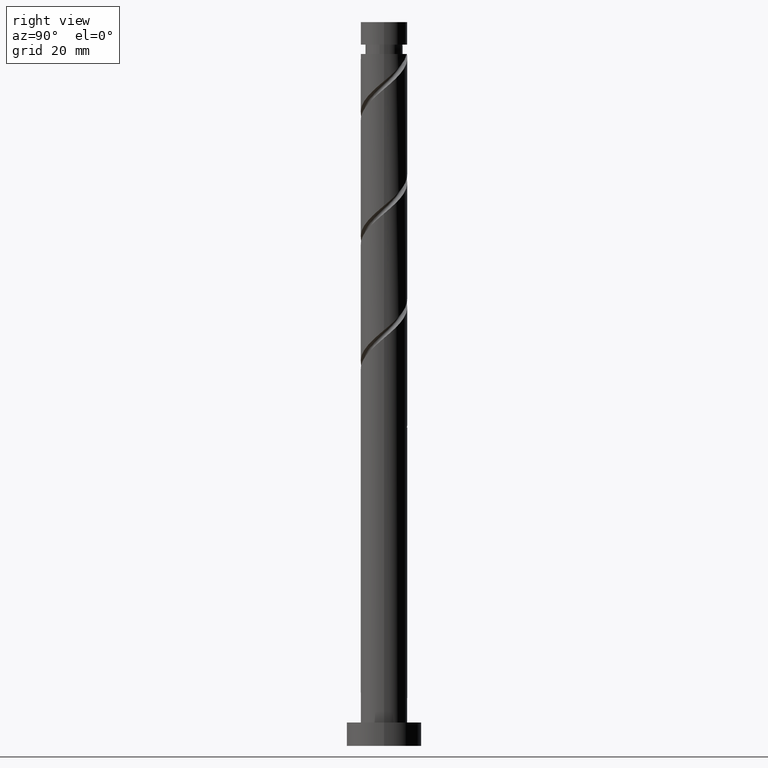
[diagram: clean part render]
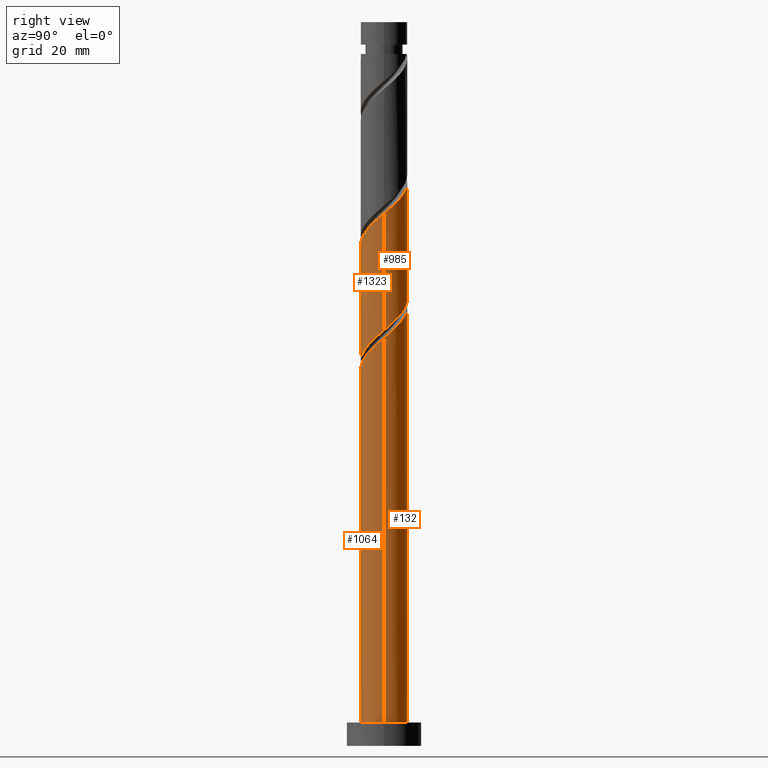
[diagram: same view with one multi-face feature highlighted, each face labeled with its STEP entity id]
A machine part, right view. The highlighted faces form ONE feature: a constant-radius fillet chain: 4 tangent blend faces with common blend radius 5 mm. The faces share edges in the B-rep.
Their STEP definitions:
[1] entity #1064 (Cylinder):
#19 = CARTESIAN_POINT ( 'NONE',  ( -4.708523589020798816, -1.682202607189388521, 75.45168989092317702 ) ) ;
#26 = CARTESIAN_POINT ( 'NONE',  ( 3.486176702121021709, -3.584211489517420635, 83.93653837577167565 ) ) ;
#62 = CARTESIAN_POINT ( 'NONE',  ( 1.699501077681991434, -4.756942403746386105, 82.11835655758986263 ) ) ;
#82 = DIRECTION ( 'NONE',  ( 0.000000000000000000, 0.000000000000000000, 1.000000000000000000 ) ) ;
#107 = EDGE_CURVE ( 'NONE', #681, #1356, #1646, .T. ) ;
#116 = CARTESIAN_POINT ( 'NONE',  ( -3.621068748224359091, -3.522025846900554313, 77.26987170910501845 ) ) ;
#124 = ORIENTED_EDGE ( 'NONE', *, *, #448, .T. ) ;
#160 = CARTESIAN_POINT ( 'NONE',  ( 4.707993719930686716, -1.830737577780037428, 85.75472019395347445 ) ) ;
#168 = EDGE_LOOP ( 'NONE', ( #302, #615, #124, #1107 ) ) ;
#237 = DIRECTION ( 'NONE',  ( -0.000000000000000000, -0.000000000000000000, -1.000000000000000000 ) ) ;
#253 = CARTESIAN_POINT ( 'NONE',  ( 0.2904737965312516601, -5.043057596253627040, 80.90623534546861606 ) ) ;
#263 = CARTESIAN_POINT ( 'NONE',  ( -2.482120673787422405, -4.399532009925576581, 78.48199292122622239 ) ) ;
#299 = DIRECTION ( 'NONE',  ( -0.000000000000000000, -0.000000000000000000, -1.000000000000000000 ) ) ;
#302 = ORIENTED_EDGE ( 'NONE', *, *, #1489, .F. ) ;
#317 = CARTESIAN_POINT ( 'NONE',  ( 5.000000000000007994, 3.903730203612562477E-15, 87.32950813889500807 ) ) ;
#329 = DIRECTION ( 'NONE',  ( -0.000000000000000000, -0.000000000000000000, -1.000000000000000000 ) ) ;
#371 = CARTESIAN_POINT ( 'NONE',  ( -4.466659368005212016, -2.359186096053888626, 76.05775049698378609 ) ) ;
#426 = CARTESIAN_POINT ( 'NONE',  ( 2.970844888841024378, -4.085448028313401814, 83.33047776971103815 ) ) ;
#445 = CARTESIAN_POINT ( 'NONE',  ( 5.000000000000007105, -0.5726446369256198432, 86.84354818592370862 ) ) ;
#448 = EDGE_CURVE ( 'NONE', #681, #1405, #596, .T. ) ;
#511 = AXIS2_PLACEMENT_3D ( 'NONE', #1592, #82, #719 ) ;
#558 = VERTEX_POINT ( 'NONE', #832 ) ;
#595 = AXIS2_PLACEMENT_3D ( 'NONE', #1397, #237, #885 ) ;
#596 = LINE ( 'NONE', #1225, #1450 ) ;
#615 = ORIENTED_EDGE ( 'NONE', *, *, #107, .F. ) ;
#636 = CARTESIAN_POINT ( 'NONE',  ( -3.051594711005890748, -3.960778928413065003, 77.87593231516561332 ) ) ;
#681 = VERTEX_POINT ( 'NONE', #974 ) ;
#686 = CARTESIAN_POINT ( 'NONE',  ( 4.354751117665853322, -2.456856264250739219, 85.14865958789290801 ) ) ;
#700 = CARTESIAN_POINT ( 'NONE',  ( -5.000000000000000000, 0.000000000000000000, 5.000000000000000000 ) ) ;
#705 = CARTESIAN_POINT ( 'NONE',  ( 0.9949874371066216305, -4.900000000000007461, 81.51229595152926777 ) ) ;
#719 = DIRECTION ( 'NONE',  ( 1.000000000000000000, 0.000000000000000000, 0.000000000000000000 ) ) ;
#784 = CARTESIAN_POINT ( 'NONE',  ( -4.950387810036383840, -1.005219118324889527, 74.84562928486258215 ) ) ;
#806 = CARTESIAN_POINT ( 'NONE',  ( 4.870529496359508492, -1.130461155941271389, 86.36078080001406931 ) ) ;
#827 = CIRCLE ( 'NONE', #511, 5.000000000000000000 ) ;
#832 = CARTESIAN_POINT ( 'NONE',  ( 5.000000000000000000, 6.123233995736766282E-16, 5.000000000000000000 ) ) ;
#877 = FACE_OUTER_BOUND ( 'NONE', #168, .T. ) ;
#885 = DIRECTION ( 'NONE',  ( -1.000000000000000000, 0.000000000000000000, 0.000000000000000000 ) ) ;
#943 = CARTESIAN_POINT ( 'NONE',  ( 2.335172983261507795, -4.421195216029893515, 82.72441716365044329 ) ) ;
#964 = VECTOR ( 'NONE', #329, 1000.000000000000000 ) ;
#974 = CARTESIAN_POINT ( 'NONE',  ( -5.000000000000007994, -4.098168872758016579E-15, 73.99617480556170790 ) ) ;
#1008 = CARTESIAN_POINT ( 'NONE',  ( -4.991726541412356610, -0.2875171921111925877, 74.23956867880197308 ) ) ;
#1019 = CARTESIAN_POINT ( 'NONE',  ( -1.142085944100265760, -4.920614254530760512, 79.69411413334742633 ) ) ;
#1064 = ADVANCED_FACE ( 'NONE', ( #877 ), #1108, .T. ) ;
#1101 = LINE ( 'NONE', #1473, #964 ) ;
#1107 = ORIENTED_EDGE ( 'NONE', *, *, #1410, .T. ) ;
#1108 = CYLINDRICAL_SURFACE ( 'NONE', #595, 5.000000000000000000 ) ;
#1154 = CARTESIAN_POINT ( 'NONE',  ( -1.812103308943844748, -4.660073132228168546, 79.08805352728680305 ) ) ;
#1225 = CARTESIAN_POINT ( 'NONE',  ( -5.000000000000000000, 0.000000000000000000, 155.0000000000000000 ) ) ;
#1284 = CARTESIAN_POINT ( 'NONE',  ( -4.043864058114787774, -2.940605971477222358, 76.66381110304439517 ) ) ;
#1356 = VERTEX_POINT ( 'NONE', #1558 ) ;
#1397 = CARTESIAN_POINT ( 'NONE',  ( 0.000000000000000000, 0.000000000000000000, 155.0000000000000000 ) ) ;
#1405 = VERTEX_POINT ( 'NONE', #700 ) ;
#1410 = EDGE_CURVE ( 'NONE', #1405, #558, #827, .T. ) ;
#1412 = CARTESIAN_POINT ( 'NONE',  ( -0.4258060737845069110, -4.981835925392195108, 80.30017473940806383 ) ) ;
#1423 = CARTESIAN_POINT ( 'NONE',  ( -5.000000000000006217, -0.1438776326191163468, 74.11827281027991887 ) ) ;
#1450 = VECTOR ( 'NONE', #299, 1000.000000000000000 ) ;
#1467 = CARTESIAN_POINT ( 'NONE',  ( 4.001508515401017263, -3.082974950721437679, 84.54259898183227051 ) ) ;
#1473 = CARTESIAN_POINT ( 'NONE',  ( 5.000000000000000000, 6.123233995736766282E-16, 155.0000000000000000 ) ) ;
#1489 = EDGE_CURVE ( 'NONE', #1356, #558, #1101, .T. ) ;
#1546 = CARTESIAN_POINT ( 'NONE',  ( -5.000000000000007994, -4.098168872758015790E-15, 73.99617480556170790 ) ) ;
#1558 = CARTESIAN_POINT ( 'NONE',  ( 5.000000000000007994, 3.903730203612562477E-15, 87.32950813889500807 ) ) ;
#1592 = CARTESIAN_POINT ( 'NONE',  ( 0.000000000000000000, 0.000000000000000000, 5.000000000000000000 ) ) ;
#1646 =( BOUNDED_CURVE ( )  B_SPLINE_CURVE ( 2, ( #1546, #1423, #1008, #784, #19, #371, #1284, #116, #636, #263, #1154, #1019, #1412, #253, #705, #62, #943, #426, #26, #1467, #686, #160, #806, #445, #317 ),
 .UNSPECIFIED., .F., .T. ) 
 B_SPLINE_CURVE_WITH_KNOTS ( ( 3, 2, 2, 2, 2, 2, 2, 2, 2, 2, 2, 2, 3 ),
 ( 0.05452521624175135639, 0.05681818181818176772, 0.06818181818181823228, 0.07954545454545458583, 0.09090909090909093937, 0.1022727272727272929, 0.1136363636363636465, 0.1250000000000000000, 0.1363636363636363535, 0.1477272727272727071, 0.1590909090909090606, 0.1704545454545454142, 0.1795252162417512176 ),
 .UNSPECIFIED. ) 
 CURVE ( )  GEOMETRIC_REPRESENTATION_ITEM ( )  RATIONAL_B_SPLINE_CURVE ( ( 0.9061101570135607908, 0.9072237824201428991, 0.9090909090909202739, 0.8998376744372226232, 0.9090909090909202739, 0.8998376744372226232, 0.9090909090909202739, 0.8998376744372226232, 0.9090909090909202739, 0.8998376744372226232, 0.9090909090909202739, 0.8998376744372226232, 0.9090909090909202739, 0.8998376744372226232, 0.9090909090909202739, 0.8998376744372226232, 0.9090909090909202739, 0.8998376744372226232, 0.9090909090909202739, 0.8998376744372226232, 0.9090909090909202739, 0.8998376744372226232, 0.9090909090909202739, 0.9017048011080001091, 0.9061101570135605687 ) ) 
 REPRESENTATION_ITEM ( '' )  );
[2] entity #132 (Cylinder):
#13 = CARTESIAN_POINT ( 'NONE',  ( -0.9949874371066206313, 4.900000000000006573, 68.17896261819591075 ) ) ;
#29 = CARTESIAN_POINT ( 'NONE',  ( -3.486176702121021709, 3.584211489517420635, 97.26987170910501845 ) ) ;
#31 = CARTESIAN_POINT ( 'NONE',  ( -5.000000000000000000, 0.1438776326191157084, 75.57298575944523122 ) ) ;
#100 = ORIENTED_EDGE ( 'NONE', *, *, #1489, .T. ) ;
#130 = CARTESIAN_POINT ( 'NONE',  ( -4.001508515401018151, 3.082974950721436791, 71.20926564849892770 ) ) ;
#132 = ADVANCED_FACE ( 'NONE', ( #1331 ), #936, .T. ) ;
#133 = CARTESIAN_POINT ( 'NONE',  ( 0.9949874371066227408, 4.900000000000000355, 68.17896261819591075 ) ) ;
#145 = AXIS2_PLACEMENT_3D ( 'NONE', #822, #702, #1215 ) ;
#147 = CARTESIAN_POINT ( 'NONE',  ( -4.001508515401018151, 3.082974950721436791, 97.87593231516561332 ) ) ;
#156 = CARTESIAN_POINT ( 'NONE',  ( -4.707993719930686716, 1.830737577780038539, 99.08805352728680305 ) ) ;
#198 = VERTEX_POINT ( 'NONE', #816 ) ;
#242 = CARTESIAN_POINT ( 'NONE',  ( -1.812103308943839419, 4.660073132228159665, 70.60320504243833284 ) ) ;
#248 = AXIS2_PLACEMENT_3D ( 'NONE', #582, #301, #924 ) ;
#268 = CARTESIAN_POINT ( 'NONE',  ( -5.000000000000008882, 0.5726446369256115165, 73.51021485259039423 ) ) ;
#275 = CARTESIAN_POINT ( 'NONE',  ( -2.970844888841024378, 4.085448028313403590, 96.66381110304440938 ) ) ;
#291 = CARTESIAN_POINT ( 'NONE',  ( -2.335172983261508683, 4.421195216029893515, 96.05775049698381451 ) ) ;
#299 = DIRECTION ( 'NONE',  ( -0.000000000000000000, -0.000000000000000000, -1.000000000000000000 ) ) ;
#301 = DIRECTION ( 'NONE',  ( -0.000000000000000000, -0.000000000000000000, -1.000000000000000000 ) ) ;
#307 = VERTEX_POINT ( 'NONE', #853 ) ;
#329 = DIRECTION ( 'NONE',  ( -0.000000000000000000, -0.000000000000000000, -1.000000000000000000 ) ) ;
#336 = AXIS2_PLACEMENT_3D ( 'NONE', #379, #386, #769 ) ;
#356 =( BOUNDED_CURVE ( )  B_SPLINE_CURVE ( 2, ( #13, #893, #1033, #523, #1417, #130, #1025, #899, #801, #268, #927 ),
 .UNSPECIFIED., .F., .T. ) 
 B_SPLINE_CURVE_WITH_KNOTS ( ( 3, 2, 2, 2, 2, 3 ),
 ( 0.000000000000000000, 0.01136363636363635354, 0.02272727272727270709, 0.03409090909090906063, 0.04545454545454541417, 0.05452521624175135639 ),
 .UNSPECIFIED. ) 
 CURVE ( )  GEOMETRIC_REPRESENTATION_ITEM ( )  RATIONAL_B_SPLINE_CURVE ( ( 0.9090909090909202739, 0.8998376744372226232, 0.9090909090909202739, 0.8998376744372226232, 0.9090909090909202739, 0.8998376744372226232, 0.9090909090909202739, 0.8998376744372226232, 0.9090909090909202739, 0.9017048011079999981, 0.9061101570135607908 ) ) 
 REPRESENTATION_ITEM ( '' )  );
#367 = CARTESIAN_POINT ( 'NONE',  ( -3.051594711005884086, 3.960778928413059674, 71.81532625455953678 ) ) ;
#378 = EDGE_CURVE ( 'NONE', #198, #1062, #1070, .T. ) ;
#379 = CARTESIAN_POINT ( 'NONE',  ( 0.000000000000000000, 0.000000000000000000, 68.17896261819592496 ) ) ;
#386 = DIRECTION ( 'NONE',  ( 0.000000000000000000, -0.000000000000000000, -1.000000000000000000 ) ) ;
#392 = CARTESIAN_POINT ( 'NONE',  ( 4.043864058114788662, 2.940605971477221026, 89.99714443637770955 ) ) ;
#399 = CARTESIAN_POINT ( 'NONE',  ( 4.708523589020798816, 1.682202607189387411, 88.78502322425654825 ) ) ;
#411 = CARTESIAN_POINT ( 'NONE',  ( -3.621068748224353318, 3.522025846900549428, 72.42138686062016006 ) ) ;
#448 = EDGE_CURVE ( 'NONE', #681, #1405, #596, .T. ) ;
#453 = CARTESIAN_POINT ( 'NONE',  ( -5.000000000000000000, 0.000000000000000000, 155.0000000000000000 ) ) ;
#488 = ORIENTED_EDGE ( 'NONE', *, *, #517, .F. ) ;
#517 = EDGE_CURVE ( 'NONE', #528, #198, #843, .T. ) ;
#523 = CARTESIAN_POINT ( 'NONE',  ( -2.970844888841024378, 4.085448028313403590, 69.99714443637770955 ) ) ;
#528 = VERTEX_POINT ( 'NONE', #1480 ) ;
#534 = CIRCLE ( 'NONE', #145, 5.000000000000000000 ) ;
#539 = CARTESIAN_POINT ( 'NONE',  ( 4.950387810036383840, 1.005219118324888861, 88.17896261819593917 ) ) ;
#549 = CARTESIAN_POINT ( 'NONE',  ( -4.354751117665853322, 2.456856264250738331, 98.48199292122619397 ) ) ;
#551 = CARTESIAN_POINT ( 'NONE',  ( -4.708523589020789935, 1.682202607189386523, 74.23956867880198729 ) ) ;
#558 = VERTEX_POINT ( 'NONE', #832 ) ;
#582 = CARTESIAN_POINT ( 'NONE',  ( 0.000000000000000000, 0.000000000000000000, 155.0000000000000000 ) ) ;
#593 = CARTESIAN_POINT ( 'NONE',  ( -5.000000000000007994, -4.098168872758016579E-15, 100.6628414722283509 ) ) ;
#596 = LINE ( 'NONE', #1225, #1450 ) ;
#638 = EDGE_CURVE ( 'NONE', #558, #1405, #534, .T. ) ;
#640 = VECTOR ( 'NONE', #958, 1000.000000000000000 ) ;
#654 = CARTESIAN_POINT ( 'NONE',  ( 5.000000000000007994, 3.903730203612562477E-15, 87.32950813889500807 ) ) ;
#672 = CARTESIAN_POINT ( 'NONE',  ( 0.4258060737845075217, 4.981835925392195996, 93.63350807274137821 ) ) ;
#681 = VERTEX_POINT ( 'NONE', #974 ) ;
#700 = CARTESIAN_POINT ( 'NONE',  ( -5.000000000000000000, 0.000000000000000000, 5.000000000000000000 ) ) ;
#702 = DIRECTION ( 'NONE',  ( 0.000000000000000000, 0.000000000000000000, 1.000000000000000000 ) ) ;
#760 = CARTESIAN_POINT ( 'NONE',  ( -0.4258060737845053567, 4.981835925392186226, 69.39108383031712890 ) ) ;
#761 = EDGE_CURVE ( 'NONE', #307, #681, #356, .T. ) ;
#769 = DIRECTION ( 'NONE',  ( -1.000000000000000000, 0.000000000000000000, 0.000000000000000000 ) ) ;
#770 = EDGE_CURVE ( 'NONE', #1356, #528, #1421, .T. ) ;
#771 = ORIENTED_EDGE ( 'NONE', *, *, #770, .F. ) ;
#793 = CARTESIAN_POINT ( 'NONE',  ( 1.812103308943843416, 4.660073132228168546, 92.42138686062016006 ) ) ;
#800 = ORIENTED_EDGE ( 'NONE', *, *, #638, .T. ) ;
#801 = CARTESIAN_POINT ( 'NONE',  ( -4.870529496359508492, 1.130461155941271612, 73.02744746668075493 ) ) ;
#816 = CARTESIAN_POINT ( 'NONE',  ( -5.000000000000000000, 5.444282736072736138E-15, 75.69508376416347062 ) ) ;
#822 = CARTESIAN_POINT ( 'NONE',  ( 0.000000000000000000, 0.000000000000000000, 5.000000000000000000 ) ) ;
#832 = CARTESIAN_POINT ( 'NONE',  ( 5.000000000000000000, 6.123233995736766282E-16, 5.000000000000000000 ) ) ;
#843 = LINE ( 'NONE', #453, #640 ) ;
#853 = CARTESIAN_POINT ( 'NONE',  ( -0.9949874371066207424, 4.900000000000006573, 68.17896261819591075 ) ) ;
#893 = CARTESIAN_POINT ( 'NONE',  ( -1.699501077681992545, 4.756942403746386105, 68.78502322425651982 ) ) ;
#899 = CARTESIAN_POINT ( 'NONE',  ( -4.707993719930686716, 1.830737577780038539, 72.42138686062013164 ) ) ;
#916 = CARTESIAN_POINT ( 'NONE',  ( 4.466659368005212905, 2.359186096053887294, 89.39108383031712890 ) ) ;
#924 = DIRECTION ( 'NONE',  ( -1.000000000000000000, 0.000000000000000000, 0.000000000000000000 ) ) ;
#927 = CARTESIAN_POINT ( 'NONE',  ( -5.000000000000007994, -4.098168872758015790E-15, 73.99617480556170790 ) ) ;
#936 = CYLINDRICAL_SURFACE ( 'NONE', #248, 5.000000000000000000 ) ;
#958 = DIRECTION ( 'NONE',  ( -0.000000000000000000, -0.000000000000000000, -1.000000000000000000 ) ) ;
#964 = VECTOR ( 'NONE', #329, 1000.000000000000000 ) ;
#974 = CARTESIAN_POINT ( 'NONE',  ( -5.000000000000007994, -4.098168872758016579E-15, 73.99617480556170790 ) ) ;
#1006 = CARTESIAN_POINT ( 'NONE',  ( -4.991726541412347729, 0.2875171921111933648, 75.45168989092319123 ) ) ;
#1021 = CARTESIAN_POINT ( 'NONE',  ( -4.870529496359508492, 1.130461155941271612, 99.69411413334744054 ) ) ;
#1025 = CARTESIAN_POINT ( 'NONE',  ( -4.354751117665853322, 2.456856264250738331, 71.81532625455953678 ) ) ;
#1033 = CARTESIAN_POINT ( 'NONE',  ( -2.335172983261508683, 4.421195216029893515, 69.39108383031712890 ) ) ;
#1055 = CARTESIAN_POINT ( 'NONE',  ( 2.482120673787420628, 4.399532009925577469, 91.81532625455955099 ) ) ;
#1058 = CARTESIAN_POINT ( 'NONE',  ( -4.466659368005205799, 2.359186096053885517, 73.63350807274136400 ) ) ;
#1062 = VERTEX_POINT ( 'NONE', #1507 ) ;
#1066 = CIRCLE ( 'NONE', #336, 5.000000000000000000 ) ;
#1070 =( BOUNDED_CURVE ( )  B_SPLINE_CURVE ( 2, ( #1188, #31, #1006, #1524, #551, #1058, #1576, #411, #367, #1403, #242, #1455, #760, #1303, #133 ),
 .UNSPECIFIED., .F., .T. ) 
 B_SPLINE_CURVE_WITH_KNOTS ( ( 3, 2, 2, 2, 2, 2, 2, 3 ),
 ( 0.9295252162417513286, 0.9318181818181817677, 0.9431818181818182323, 0.9545454545454545858, 0.9659090909090909394, 0.9772727272727272929, 0.9886363636363636465, 1.000000000000000000 ),
 .UNSPECIFIED. ) 
 CURVE ( )  GEOMETRIC_REPRESENTATION_ITEM ( )  RATIONAL_B_SPLINE_CURVE ( ( 0.9061101570135534633, 0.9072237824201356826, 0.9090909090909131685, 0.8998376744372155178, 0.9090909090909131685, 0.8998376744372155178, 0.9090909090909131685, 0.8998376744372155178, 0.9090909090909131685, 0.8998376744372155178, 0.9090909090909131685, 0.8998376744372155178, 0.9090909090909131685, 0.8998376744372155178, 0.9090909090909131685 ) ) 
 REPRESENTATION_ITEM ( '' )  );
#1101 = LINE ( 'NONE', #1473, #964 ) ;
#1186 = CARTESIAN_POINT ( 'NONE',  ( -1.699501077681992545, 4.756942403746386105, 95.45168989092316281 ) ) ;
#1188 = CARTESIAN_POINT ( 'NONE',  ( -5.000000000000000000, 5.444282736072736138E-15, 75.69508376416347062 ) ) ;
#1195 = CARTESIAN_POINT ( 'NONE',  ( -0.9949874371066209644, 4.900000000000007461, 94.84562928486256794 ) ) ;
#1215 = DIRECTION ( 'NONE',  ( 1.000000000000000000, 0.000000000000000000, 0.000000000000000000 ) ) ;
#1225 = CARTESIAN_POINT ( 'NONE',  ( -5.000000000000000000, 0.000000000000000000, 155.0000000000000000 ) ) ;
#1303 = CARTESIAN_POINT ( 'NONE',  ( 0.2904737965312522707, 5.043057596253619046, 68.78502322425654825 ) ) ;
#1305 = ORIENTED_EDGE ( 'NONE', *, *, #1636, .T. ) ;
#1309 = CARTESIAN_POINT ( 'NONE',  ( 4.991726541412356610, 0.2875171921111920881, 87.57290201213528746 ) ) ;
#1328 = CARTESIAN_POINT ( 'NONE',  ( 5.000000000000006217, 0.1438776326191072708, 87.45160614361320484 ) ) ;
#1331 = FACE_OUTER_BOUND ( 'NONE', #1643, .T. ) ;
#1334 = ORIENTED_EDGE ( 'NONE', *, *, #448, .F. ) ;
#1351 = ORIENTED_EDGE ( 'NONE', *, *, #378, .F. ) ;
#1356 = VERTEX_POINT ( 'NONE', #1558 ) ;
#1403 = CARTESIAN_POINT ( 'NONE',  ( -2.482120673787417964, 4.399532009925572140, 71.20926564849895612 ) ) ;
#1405 = VERTEX_POINT ( 'NONE', #700 ) ;
#1417 = CARTESIAN_POINT ( 'NONE',  ( -3.486176702121021709, 3.584211489517420635, 70.60320504243834705 ) ) ;
#1421 =( BOUNDED_CURVE ( )  B_SPLINE_CURVE ( 2, ( #654, #1328, #1309, #539, #399, #916, #392, #1444, #1557, #1055, #793, #1433, #672, #1452, #1195, #1186, #291, #275, #29, #147, #549, #156, #1021, #1542, #593 ),
 .UNSPECIFIED., .F., .T. ) 
 B_SPLINE_CURVE_WITH_KNOTS ( ( 3, 2, 2, 2, 2, 2, 2, 2, 2, 2, 2, 2, 3 ),
 ( 0.1795252162417512176, 0.1818181818181817677, 0.1931818181818182323, 0.2045454545454545858, 0.2159090909090909394, 0.2272727272727272929, 0.2386363636363636465, 0.2500000000000000000, 0.2613636363636363535, 0.2727272727272727071, 0.2840909090909090606, 0.2954545454545454142, 0.3045252162417513286 ),
 .UNSPECIFIED. ) 
 CURVE ( )  GEOMETRIC_REPRESENTATION_ITEM ( )  RATIONAL_B_SPLINE_CURVE ( ( 0.9061101570135605687, 0.9072237824201427880, 0.9090909090909202739, 0.8998376744372226232, 0.9090909090909202739, 0.8998376744372226232, 0.9090909090909202739, 0.8998376744372226232, 0.9090909090909202739, 0.8998376744372226232, 0.9090909090909202739, 0.8998376744372226232, 0.9090909090909202739, 0.8998376744372226232, 0.9090909090909202739, 0.8998376744372226232, 0.9090909090909202739, 0.8998376744372226232, 0.9090909090909202739, 0.8998376744372226232, 0.9090909090909202739, 0.8998376744372226232, 0.9090909090909202739, 0.9017048011080001091, 0.9061101570135606798 ) ) 
 REPRESENTATION_ITEM ( '' )  );
#1433 = CARTESIAN_POINT ( 'NONE',  ( 1.142085944100266204, 4.920614254530760512, 93.02744746668076914 ) ) ;
#1444 = CARTESIAN_POINT ( 'NONE',  ( 3.621068748224361311, 3.522025846900553869, 90.60320504243831863 ) ) ;
#1450 = VECTOR ( 'NONE', #299, 1000.000000000000000 ) ;
#1452 = CARTESIAN_POINT ( 'NONE',  ( -0.2904737965312511050, 5.043057596253627928, 94.23956867880195887 ) ) ;
#1455 = CARTESIAN_POINT ( 'NONE',  ( -1.142085944100262873, 4.920614254530754295, 69.99714443637775219 ) ) ;
#1473 = CARTESIAN_POINT ( 'NONE',  ( 5.000000000000000000, 6.123233995736766282E-16, 155.0000000000000000 ) ) ;
#1480 = CARTESIAN_POINT ( 'NONE',  ( -5.000000000000007994, -4.098168872758016579E-15, 100.6628414722283509 ) ) ;
#1489 = EDGE_CURVE ( 'NONE', #1356, #558, #1101, .T. ) ;
#1507 = CARTESIAN_POINT ( 'NONE',  ( 0.9949874371066227408, 4.900000000000000355, 68.17896261819591075 ) ) ;
#1524 = CARTESIAN_POINT ( 'NONE',  ( -4.950387810036377623, 1.005219118324889305, 74.84562928486258215 ) ) ;
#1542 = CARTESIAN_POINT ( 'NONE',  ( -5.000000000000007994, 0.5726446369256132929, 100.1768815192570514 ) ) ;
#1557 = CARTESIAN_POINT ( 'NONE',  ( 3.051594711005889859, 3.960778928413066780, 91.20926564849892770 ) ) ;
#1558 = CARTESIAN_POINT ( 'NONE',  ( 5.000000000000007994, 3.903730203612562477E-15, 87.32950813889500807 ) ) ;
#1576 = CARTESIAN_POINT ( 'NONE',  ( -4.043864058114778004, 2.940605971477216585, 73.02744746668076914 ) ) ;
#1631 = ORIENTED_EDGE ( 'NONE', *, *, #761, .F. ) ;
#1636 = EDGE_CURVE ( 'NONE', #307, #1062, #1066, .T. ) ;
#1643 = EDGE_LOOP ( 'NONE', ( #771, #100, #800, #1334, #1631, #1305, #1351, #488 ) ) ;
[3] entity #1323 (Cylinder):
#33 = CARTESIAN_POINT ( 'NONE',  ( 0.4258060737845039134, -4.981835925392186226, 82.72441716365044329 ) ) ;
#88 = CARTESIAN_POINT ( 'NONE',  ( -1.142085944100265760, -4.920614254530760512, 106.3607808000140977 ) ) ;
#112 = CARTESIAN_POINT ( 'NONE',  ( -4.043864058114787774, -2.940605971477222358, 103.3304777697110950 ) ) ;
#139 = CARTESIAN_POINT ( 'NONE',  ( 0.2904737965312516601, -5.043057596253627040, 107.5729020121353159 ) ) ;
#154 = CARTESIAN_POINT ( 'NONE',  ( 5.000000000000000000, 7.343798965416794784E-15, 89.02841709749681343 ) ) ;
#157 = CARTESIAN_POINT ( 'NONE',  ( 0.000000000000000000, 0.000000000000000000, 155.0000000000000000 ) ) ;
#178 = CARTESIAN_POINT ( 'NONE',  ( -5.000000000000000000, 5.444282736072736138E-15, 75.69508376416347062 ) ) ;
#187 = CARTESIAN_POINT ( 'NONE',  ( 5.000000000000000000, 7.343798965416794784E-15, 89.02841709749681343 ) ) ;
#198 = VERTEX_POINT ( 'NONE', #816 ) ;
#246 = VERTEX_POINT ( 'NONE', #154 ) ;
#281 = CARTESIAN_POINT ( 'NONE',  ( 4.354751117665853322, -2.456856264250739219, 111.8153262545595652 ) ) ;
#286 = EDGE_CURVE ( 'NONE', #246, #198, #1295, .T. ) ;
#296 = CARTESIAN_POINT ( 'NONE',  ( 4.043864058114778892, -2.940605971477217473, 86.36078080001408352 ) ) ;
#305 = CARTESIAN_POINT ( 'NONE',  ( -4.001508515401012822, -3.082974950721431018, 78.48199292122622239 ) ) ;
#324 = EDGE_LOOP ( 'NONE', ( #1484, #460, #698, #1460 ) ) ;
#335 = CARTESIAN_POINT ( 'NONE',  ( -4.708523589020798816, -1.682202607189388521, 102.1183565575898768 ) ) ;
#361 = CARTESIAN_POINT ( 'NONE',  ( -4.950387810036383840, -1.005219118324889527, 101.5122959515292536 ) ) ;
#376 = CARTESIAN_POINT ( 'NONE',  ( 5.000000000000007994, 3.903730203612562477E-15, 113.9961748055617221 ) ) ;
#406 = CARTESIAN_POINT ( 'NONE',  ( 3.621068748224353762, -3.522025846900549428, 85.75472019395350287 ) ) ;
#409 = CARTESIAN_POINT ( 'NONE',  ( -0.4258060737845069110, -4.981835925392195108, 106.9668414060746784 ) ) ;
#415 = CARTESIAN_POINT ( 'NONE',  ( -4.707993719930677834, -1.830737577780034542, 77.26987170910500424 ) ) ;
#436 = CARTESIAN_POINT ( 'NONE',  ( -0.9949874371066220746, -4.899999999999999467, 81.51229595152923935 ) ) ;
#453 = CARTESIAN_POINT ( 'NONE',  ( -5.000000000000000000, 0.000000000000000000, 155.0000000000000000 ) ) ;
#460 = ORIENTED_EDGE ( 'NONE', *, *, #714, .F. ) ;
#507 = CARTESIAN_POINT ( 'NONE',  ( -2.482120673787422405, -4.399532009925576581, 105.1486595878928796 ) ) ;
#517 = EDGE_CURVE ( 'NONE', #528, #198, #843, .T. ) ;
#528 = VERTEX_POINT ( 'NONE', #1480 ) ;
#556 = CARTESIAN_POINT ( 'NONE',  ( -1.699501077681990768, -4.756942403746379000, 80.90623534546863027 ) ) ;
#565 = CARTESIAN_POINT ( 'NONE',  ( 3.051594711005883642, -3.960778928413059674, 85.14865958789290801 ) ) ;
#631 = CARTESIAN_POINT ( 'NONE',  ( -3.621068748224359091, -3.522025846900554313, 103.9365383757716614 ) ) ;
#640 = VECTOR ( 'NONE', #958, 1000.000000000000000 ) ;
#648 = CARTESIAN_POINT ( 'NONE',  ( 0.9949874371066216305, -4.900000000000007461, 108.1789626181958823 ) ) ;
#655 = FACE_OUTER_BOUND ( 'NONE', #324, .T. ) ;
#673 = LINE ( 'NONE', #802, #1320 ) ;
#679 = CARTESIAN_POINT ( 'NONE',  ( 4.708523589020789935, -1.682202607189386967, 87.57290201213530167 ) ) ;
#682 = CARTESIAN_POINT ( 'NONE',  ( 2.970844888841024378, -4.085448028313401814, 109.9971444363777238 ) ) ;
#698 = ORIENTED_EDGE ( 'NONE', *, *, #517, .T. ) ;
#714 = EDGE_CURVE ( 'NONE', #528, #1396, #824, .T. ) ;
#802 = CARTESIAN_POINT ( 'NONE',  ( 5.000000000000000000, 6.123233995736766282E-16, 155.0000000000000000 ) ) ;
#816 = CARTESIAN_POINT ( 'NONE',  ( -5.000000000000000000, 5.444282736072736138E-15, 75.69508376416347062 ) ) ;
#824 =( BOUNDED_CURVE ( )  B_SPLINE_CURVE ( 2, ( #1268, #1003, #1519, #361, #335, #1278, #112, #631, #1148, #507, #859, #88, #409, #139, #648, #1301, #1574, #682, #1159, #1042, #281, #1564, #1177, #1166, #376 ),
 .UNSPECIFIED., .F., .T. ) 
 B_SPLINE_CURVE_WITH_KNOTS ( ( 3, 2, 2, 2, 2, 2, 2, 2, 2, 2, 2, 2, 3 ),
 ( 0.3045252162417513286, 0.3068181818181817677, 0.3181818181818182323, 0.3295454545454545858, 0.3409090909090909394, 0.3522727272727272929, 0.3636363636363636465, 0.3750000000000000000, 0.3863636363636363535, 0.3977272727272727071, 0.4090909090909090606, 0.4204545454545454142, 0.4295252162417513286 ),
 .UNSPECIFIED. ) 
 CURVE ( )  GEOMETRIC_REPRESENTATION_ITEM ( )  RATIONAL_B_SPLINE_CURVE ( ( 0.9061101570135606798, 0.9072237824201427880, 0.9090909090909202739, 0.8998376744372226232, 0.9090909090909202739, 0.8998376744372226232, 0.9090909090909202739, 0.8998376744372226232, 0.9090909090909202739, 0.8998376744372226232, 0.9090909090909202739, 0.8998376744372226232, 0.9090909090909202739, 0.8998376744372226232, 0.9090909090909202739, 0.8998376744372226232, 0.9090909090909202739, 0.8998376744372226232, 0.9090909090909202739, 0.8998376744372226232, 0.9090909090909202739, 0.8998376744372226232, 0.9090909090909202739, 0.9017048011080001091, 0.9061101570135606798 ) ) 
 REPRESENTATION_ITEM ( '' )  );
#826 = CARTESIAN_POINT ( 'NONE',  ( -4.354751117665845328, -2.456856264250733002, 77.87593231516562753 ) ) ;
#843 = LINE ( 'NONE', #453, #640 ) ;
#859 = CARTESIAN_POINT ( 'NONE',  ( -1.812103308943844748, -4.660073132228168546, 105.7547201939535029 ) ) ;
#953 = CARTESIAN_POINT ( 'NONE',  ( -2.970844888841019937, -4.085448028313397373, 79.69411413334742633 ) ) ;
#958 = DIRECTION ( 'NONE',  ( -0.000000000000000000, -0.000000000000000000, -1.000000000000000000 ) ) ;
#1003 = CARTESIAN_POINT ( 'NONE',  ( -5.000000000000006217, -0.1438776326191145982, 100.7849394769465619 ) ) ;
#1011 = AXIS2_PLACEMENT_3D ( 'NONE', #157, #1565, #1336 ) ;
#1042 = CARTESIAN_POINT ( 'NONE',  ( 4.001508515401017263, -3.082974950721437679, 111.2092656484989419 ) ) ;
#1052 = CARTESIAN_POINT ( 'NONE',  ( 4.991726541412347729, -0.2875171921111941420, 88.78502322425653404 ) ) ;
#1069 = CARTESIAN_POINT ( 'NONE',  ( 5.000000000000000000, -0.1438776326191167909, 88.90631909277860245 ) ) ;
#1079 = CARTESIAN_POINT ( 'NONE',  ( 4.466659368005205799, -2.359186096053885073, 86.96684140607470681 ) ) ;
#1148 = CARTESIAN_POINT ( 'NONE',  ( -3.051594711005890748, -3.960778928413065003, 104.5425989818322705 ) ) ;
#1159 = CARTESIAN_POINT ( 'NONE',  ( 3.486176702121021709, -3.584211489517420635, 110.6032050424383613 ) ) ;
#1166 = CARTESIAN_POINT ( 'NONE',  ( 5.000000000000007994, -0.5726446369256129598, 113.5102148525903942 ) ) ;
#1177 = CARTESIAN_POINT ( 'NONE',  ( 4.870529496359508492, -1.130461155941271389, 113.0274474666807549 ) ) ;
#1191 = CARTESIAN_POINT ( 'NONE',  ( 1.142085944100263095, -4.920614254530754295, 83.33047776971108078 ) ) ;
#1214 = CARTESIAN_POINT ( 'NONE',  ( 5.000000000000007994, 3.903730203612562477E-15, 113.9961748055617221 ) ) ;
#1268 = CARTESIAN_POINT ( 'NONE',  ( -5.000000000000007994, -4.098168872758016579E-15, 100.6628414722283509 ) ) ;
#1278 = CARTESIAN_POINT ( 'NONE',  ( -4.466659368005212016, -2.359186096053888626, 102.7244171636504433 ) ) ;
#1295 =( BOUNDED_CURVE ( )  B_SPLINE_CURVE ( 2, ( #187, #1069, #1052, #1571, #679, #1079, #296, #406, #565, #1590, #1448, #1191, #33, #1599, #436, #556, #1580, #953, #1477, #305, #826, #415, #1457, #1349, #178 ),
 .UNSPECIFIED., .F., .T. ) 
 B_SPLINE_CURVE_WITH_KNOTS ( ( 3, 2, 2, 2, 2, 2, 2, 2, 2, 2, 2, 2, 3 ),
 ( 0.8045252162417513286, 0.8068181818181817677, 0.8181818181818182323, 0.8295454545454545858, 0.8409090909090909394, 0.8522727272727272929, 0.8636363636363636465, 0.8750000000000000000, 0.8863636363636363535, 0.8977272727272727071, 0.9090909090909090606, 0.9204545454545454142, 0.9295252162417513286 ),
 .UNSPECIFIED. ) 
 CURVE ( )  GEOMETRIC_REPRESENTATION_ITEM ( )  RATIONAL_B_SPLINE_CURVE ( ( 0.9061101570135534633, 0.9072237824201356826, 0.9090909090909131685, 0.8998376744372155178, 0.9090909090909131685, 0.8998376744372155178, 0.9090909090909131685, 0.8998376744372155178, 0.9090909090909131685, 0.8998376744372155178, 0.9090909090909131685, 0.8998376744372155178, 0.9090909090909131685, 0.8998376744372155178, 0.9090909090909131685, 0.8998376744372155178, 0.9090909090909131685, 0.8998376744372155178, 0.9090909090909131685, 0.8998376744372155178, 0.9090909090909131685, 0.8998376744372155178, 0.9090909090909131685, 0.9017048011079928926, 0.9061101570135534633 ) ) 
 REPRESENTATION_ITEM ( '' )  );
#1301 = CARTESIAN_POINT ( 'NONE',  ( 1.699501077681991434, -4.756942403746386105, 108.7850232242564914 ) ) ;
#1313 = EDGE_CURVE ( 'NONE', #1396, #246, #673, .T. ) ;
#1320 = VECTOR ( 'NONE', #1462, 1000.000000000000000 ) ;
#1323 = ADVANCED_FACE ( 'NONE', ( #655 ), #1329, .T. ) ;
#1329 = CYLINDRICAL_SURFACE ( 'NONE', #1011, 5.000000000000000000 ) ;
#1336 = DIRECTION ( 'NONE',  ( -1.000000000000000000, 0.000000000000000000, 0.000000000000000000 ) ) ;
#1349 = CARTESIAN_POINT ( 'NONE',  ( -5.000000000000001776, -0.5726446369256107394, 76.18104371713478429 ) ) ;
#1396 = VERTEX_POINT ( 'NONE', #1214 ) ;
#1448 = CARTESIAN_POINT ( 'NONE',  ( 1.812103308943839419, -4.660073132228159665, 83.93653837577167565 ) ) ;
#1457 = CARTESIAN_POINT ( 'NONE',  ( -4.870529496359500499, -1.130461155941268059, 76.66381110304440938 ) ) ;
#1460 = ORIENTED_EDGE ( 'NONE', *, *, #286, .F. ) ;
#1462 = DIRECTION ( 'NONE',  ( -0.000000000000000000, -0.000000000000000000, -1.000000000000000000 ) ) ;
#1477 = CARTESIAN_POINT ( 'NONE',  ( -3.486176702121015047, -3.584211489517412197, 79.08805352728681726 ) ) ;
#1480 = CARTESIAN_POINT ( 'NONE',  ( -5.000000000000007994, -4.098168872758016579E-15, 100.6628414722283509 ) ) ;
#1484 = ORIENTED_EDGE ( 'NONE', *, *, #1313, .F. ) ;
#1519 = CARTESIAN_POINT ( 'NONE',  ( -4.991726541412356610, -0.2875171921111925877, 100.9062353454686303 ) ) ;
#1564 = CARTESIAN_POINT ( 'NONE',  ( 4.707993719930686716, -1.830737577780037428, 112.4213868606201316 ) ) ;
#1565 = DIRECTION ( 'NONE',  ( -0.000000000000000000, -0.000000000000000000, -1.000000000000000000 ) ) ;
#1571 = CARTESIAN_POINT ( 'NONE',  ( 4.950387810036377623, -1.005219118324889971, 88.17896261819595338 ) ) ;
#1574 = CARTESIAN_POINT ( 'NONE',  ( 2.335172983261507795, -4.421195216029893515, 109.3910838303171147 ) ) ;
#1580 = CARTESIAN_POINT ( 'NONE',  ( -2.335172983261505131, -4.421195216029887298, 80.30017473940803541 ) ) ;
#1590 = CARTESIAN_POINT ( 'NONE',  ( 2.482120673787417520, -4.399532009925572140, 84.54259898183229893 ) ) ;
#1599 = CARTESIAN_POINT ( 'NONE',  ( -0.2904737965312536030, -5.043057596253620822, 82.11835655758987684 ) ) ;
[4] entity #985 (Cylinder):
#28 =( BOUNDED_CURVE ( )  B_SPLINE_CURVE ( 2, ( #219, #375, #892, #1300, #529, #1547, #780, #128, #390, #986, #1132, #734, #1630, #352, #1378, #1536, #1639, #486, #1401, #231, #1142, #1522, #991, #1382, #862 ),
 .UNSPECIFIED., .F., .T. ) 
 B_SPLINE_CURVE_WITH_KNOTS ( ( 3, 2, 2, 2, 2, 2, 2, 2, 2, 2, 2, 2, 3 ),
 ( 0.4295252162417513286, 0.4318181818181817677, 0.4431818181818182323, 0.4545454545454545858, 0.4659090909090909394, 0.4772727272727272929, 0.4886363636363636465, 0.5000000000000000000, 0.5113636363636363535, 0.5227272727272727071, 0.5340909090909091717, 0.5454545454545454142, 0.5545252162417513286 ),
 .UNSPECIFIED. ) 
 CURVE ( )  GEOMETRIC_REPRESENTATION_ITEM ( )  RATIONAL_B_SPLINE_CURVE ( ( 0.9061101570135606798, 0.9072237824201427880, 0.9090909090909202739, 0.8998376744372226232, 0.9090909090909202739, 0.8998376744372226232, 0.9090909090909202739, 0.8998376744372226232, 0.9090909090909202739, 0.8998376744372226232, 0.9090909090909202739, 0.8998376744372226232, 0.9090909090909202739, 0.8998376744372226232, 0.9090909090909202739, 0.8998376744372226232, 0.9090909090909202739, 0.8998376744372226232, 0.9090909090909202739, 0.8998376744372226232, 0.9090909090909202739, 0.8998376744372226232, 0.9090909090909202739, 0.9017048011080002201, 0.9061101570135606798 ) ) 
 REPRESENTATION_ITEM ( '' )  );
#37 = VERTEX_POINT ( 'NONE', #520 ) ;
#80 = CARTESIAN_POINT ( 'NONE',  ( -3.621068748224353318, 3.522025846900549428, 99.08805352728683147 ) ) ;
#101 = CARTESIAN_POINT ( 'NONE',  ( 4.001508515401011934, 3.082974950721432350, 91.81532625455953678 ) ) ;
#110 = CARTESIAN_POINT ( 'NONE',  ( -4.708523589020789935, 1.682202607189386523, 100.9062353454686303 ) ) ;
#128 = CARTESIAN_POINT ( 'NONE',  ( 3.621068748224361311, 3.522025846900553869, 117.2698717091050042 ) ) ;
#154 = CARTESIAN_POINT ( 'NONE',  ( 5.000000000000000000, 7.343798965416794784E-15, 89.02841709749681343 ) ) ;
#211 = CARTESIAN_POINT ( 'NONE',  ( 1.699501077681990990, 4.756942403746378112, 94.23956867880201571 ) ) ;
#219 = CARTESIAN_POINT ( 'NONE',  ( 5.000000000000007994, 3.903730203612562477E-15, 113.9961748055617221 ) ) ;
#226 = FACE_OUTER_BOUND ( 'NONE', #808, .T. ) ;
#231 = CARTESIAN_POINT ( 'NONE',  ( -4.001508515401018151, 3.082974950721436791, 124.5425989818322705 ) ) ;
#246 = VERTEX_POINT ( 'NONE', #154 ) ;
#304 = CARTESIAN_POINT ( 'NONE',  ( -5.000000000000000000, 0.000000000000000000, 155.0000000000000000 ) ) ;
#334 = CARTESIAN_POINT ( 'NONE',  ( 0.2904737965312522707, 5.043057596253619046, 95.45168989092317702 ) ) ;
#347 = CARTESIAN_POINT ( 'NONE',  ( -3.051594711005884086, 3.960778928413059674, 98.48199292122617976 ) ) ;
#352 = CARTESIAN_POINT ( 'NONE',  ( -0.2904737965312511050, 5.043057596253627928, 120.9062353454686445 ) ) ;
#359 = CARTESIAN_POINT ( 'NONE',  ( 2.970844888841020381, 4.085448028313394708, 93.02744746668079756 ) ) ;
#375 = CARTESIAN_POINT ( 'NONE',  ( 5.000000000000006217, 0.1438776326191142652, 114.1182728102799189 ) ) ;
#390 = CARTESIAN_POINT ( 'NONE',  ( 3.051594711005889859, 3.960778928413066780, 117.8759323151656133 ) ) ;
#479 = ORIENTED_EDGE ( 'NONE', *, *, #1160, .F. ) ;
#480 = CARTESIAN_POINT ( 'NONE',  ( 5.000000000000000000, 7.343798965416794784E-15, 89.02841709749681343 ) ) ;
#486 = CARTESIAN_POINT ( 'NONE',  ( -2.970844888841024378, 4.085448028313403590, 123.3304777697110524 ) ) ;
#490 = CARTESIAN_POINT ( 'NONE',  ( -4.043864058114778004, 2.940605971477216585, 99.69411413334741212 ) ) ;
#495 = ORIENTED_EDGE ( 'NONE', *, *, #1313, .T. ) ;
#506 = DIRECTION ( 'NONE',  ( -1.000000000000000000, 0.000000000000000000, 0.000000000000000000 ) ) ;
#520 = CARTESIAN_POINT ( 'NONE',  ( -5.000000000000007105, 2.886666395774807235E-15, 127.3295081388950081 ) ) ;
#529 = CARTESIAN_POINT ( 'NONE',  ( 4.708523589020798816, 1.682202607189387411, 115.4516898909231628 ) ) ;
#531 = CARTESIAN_POINT ( 'NONE',  ( -5.000000000000000000, 5.444282736072736138E-15, 102.3617504308301562 ) ) ;
#536 = EDGE_CURVE ( 'NONE', #37, #743, #1204, .T. ) ;
#559 = CARTESIAN_POINT ( 'NONE',  ( -5.000000000000000000, 0.1438776326191157084, 102.2396524261119168 ) ) ;
#587 = CARTESIAN_POINT ( 'NONE',  ( -4.991726541412347729, 0.2875171921111933648, 102.1183565575898626 ) ) ;
#599 = CARTESIAN_POINT ( 'NONE',  ( -1.142085944100262873, 4.920614254530754295, 96.66381110304440938 ) ) ;
#651 = ORIENTED_EDGE ( 'NONE', *, *, #536, .F. ) ;
#673 = LINE ( 'NONE', #802, #1320 ) ;
#730 = CARTESIAN_POINT ( 'NONE',  ( 2.335172983261505131, 4.421195216029886410, 93.63350807274136400 ) ) ;
#734 = CARTESIAN_POINT ( 'NONE',  ( 1.142085944100266204, 4.920614254530760512, 119.6941141333474405 ) ) ;
#737 = CARTESIAN_POINT ( 'NONE',  ( -2.482120673787417964, 4.399532009925572140, 97.87593231516561332 ) ) ;
#743 = VERTEX_POINT ( 'NONE', #531 ) ;
#744 = CYLINDRICAL_SURFACE ( 'NONE', #797, 5.000000000000000000 ) ;
#774 =( BOUNDED_CURVE ( )  B_SPLINE_CURVE ( 2, ( #1613, #559, #587, #1583, #110, #995, #490, #80, #347, #737, #1372, #599, #871, #334, #1656, #211, #730, #359, #1387, #101, #1644, #857, #1250, #1624, #480 ),
 .UNSPECIFIED., .F., .T. ) 
 B_SPLINE_CURVE_WITH_KNOTS ( ( 3, 2, 2, 2, 2, 2, 2, 2, 2, 2, 2, 2, 3 ),
 ( 0.6795252162417513286, 0.6818181818181817677, 0.6931818181818182323, 0.7045454545454545858, 0.7159090909090909394, 0.7272727272727272929, 0.7386363636363636465, 0.7500000000000000000, 0.7613636363636363535, 0.7727272727272727071, 0.7840909090909090606, 0.7954545454545454142, 0.8045252162417513286 ),
 .UNSPECIFIED. ) 
 CURVE ( )  GEOMETRIC_REPRESENTATION_ITEM ( )  RATIONAL_B_SPLINE_CURVE ( ( 0.9061101570135534633, 0.9072237824201356826, 0.9090909090909131685, 0.8998376744372155178, 0.9090909090909131685, 0.8998376744372155178, 0.9090909090909131685, 0.8998376744372155178, 0.9090909090909131685, 0.8998376744372155178, 0.9090909090909131685, 0.8998376744372155178, 0.9090909090909131685, 0.8998376744372155178, 0.9090909090909131685, 0.8998376744372155178, 0.9090909090909131685, 0.8998376744372155178, 0.9090909090909131685, 0.8998376744372155178, 0.9090909090909131685, 0.8998376744372155178, 0.9090909090909131685, 0.9017048011079928926, 0.9061101570135534633 ) ) 
 REPRESENTATION_ITEM ( '' )  );
#780 = CARTESIAN_POINT ( 'NONE',  ( 4.043864058114788662, 2.940605971477221026, 116.6638111030443952 ) ) ;
#797 = AXIS2_PLACEMENT_3D ( 'NONE', #1137, #1267, #506 ) ;
#802 = CARTESIAN_POINT ( 'NONE',  ( 5.000000000000000000, 6.123233995736766282E-16, 155.0000000000000000 ) ) ;
#808 = EDGE_LOOP ( 'NONE', ( #479, #495, #1581, #651 ) ) ;
#854 = VECTOR ( 'NONE', #969, 1000.000000000000000 ) ;
#857 = CARTESIAN_POINT ( 'NONE',  ( 4.707993719930679610, 1.830737577780031655, 90.60320504243834705 ) ) ;
#862 = CARTESIAN_POINT ( 'NONE',  ( -5.000000000000007105, 2.886666395774807235E-15, 127.3295081388950081 ) ) ;
#871 = CARTESIAN_POINT ( 'NONE',  ( -0.4258060737845053567, 4.981835925392186226, 96.05775049698378609 ) ) ;
#892 = CARTESIAN_POINT ( 'NONE',  ( 4.991726541412356610, 0.2875171921111920881, 114.2395686788020015 ) ) ;
#954 = EDGE_CURVE ( 'NONE', #743, #246, #774, .T. ) ;
#969 = DIRECTION ( 'NONE',  ( -0.000000000000000000, -0.000000000000000000, -1.000000000000000000 ) ) ;
#985 = ADVANCED_FACE ( 'NONE', ( #226 ), #744, .T. ) ;
#986 = CARTESIAN_POINT ( 'NONE',  ( 2.482120673787420628, 4.399532009925577469, 118.4819929212262082 ) ) ;
#991 = CARTESIAN_POINT ( 'NONE',  ( -4.870529496359508492, 1.130461155941271612, 126.3607808000140835 ) ) ;
#995 = CARTESIAN_POINT ( 'NONE',  ( -4.466659368005205799, 2.359186096053885517, 100.3001747394080496 ) ) ;
#1132 = CARTESIAN_POINT ( 'NONE',  ( 1.812103308943843416, 4.660073132228168546, 119.0880535272868315 ) ) ;
#1137 = CARTESIAN_POINT ( 'NONE',  ( 0.000000000000000000, 0.000000000000000000, 155.0000000000000000 ) ) ;
#1142 = CARTESIAN_POINT ( 'NONE',  ( -4.354751117665853322, 2.456856264250738331, 125.1486595878928938 ) ) ;
#1160 = EDGE_CURVE ( 'NONE', #1396, #37, #28, .T. ) ;
#1204 = LINE ( 'NONE', #304, #854 ) ;
#1214 = CARTESIAN_POINT ( 'NONE',  ( 5.000000000000007994, 3.903730203612562477E-15, 113.9961748055617221 ) ) ;
#1250 = CARTESIAN_POINT ( 'NONE',  ( 4.870529496359501387, 1.130461155941266949, 89.99714443637772376 ) ) ;
#1267 = DIRECTION ( 'NONE',  ( -0.000000000000000000, -0.000000000000000000, -1.000000000000000000 ) ) ;
#1300 = CARTESIAN_POINT ( 'NONE',  ( 4.950387810036383840, 1.005219118324888861, 114.8456292848625964 ) ) ;
#1313 = EDGE_CURVE ( 'NONE', #1396, #246, #673, .T. ) ;
#1320 = VECTOR ( 'NONE', #1462, 1000.000000000000000 ) ;
#1372 = CARTESIAN_POINT ( 'NONE',  ( -1.812103308943839419, 4.660073132228159665, 97.26987170910499003 ) ) ;
#1378 = CARTESIAN_POINT ( 'NONE',  ( -0.9949874371066209644, 4.900000000000007461, 121.5122959515292536 ) ) ;
#1382 = CARTESIAN_POINT ( 'NONE',  ( -5.000000000000006217, 0.5726446369256186220, 126.8435481859236944 ) ) ;
#1387 = CARTESIAN_POINT ( 'NONE',  ( 3.486176702121014603, 3.584211489517413085, 92.42138686062014585 ) ) ;
#1396 = VERTEX_POINT ( 'NONE', #1214 ) ;
#1401 = CARTESIAN_POINT ( 'NONE',  ( -3.486176702121021709, 3.584211489517420635, 123.9365383757716614 ) ) ;
#1462 = DIRECTION ( 'NONE',  ( -0.000000000000000000, -0.000000000000000000, -1.000000000000000000 ) ) ;
#1522 = CARTESIAN_POINT ( 'NONE',  ( -4.707993719930686716, 1.830737577780038539, 125.7547201939534744 ) ) ;
#1536 = CARTESIAN_POINT ( 'NONE',  ( -1.699501077681992545, 4.756942403746386105, 122.1183565575898342 ) ) ;
#1547 = CARTESIAN_POINT ( 'NONE',  ( 4.466659368005212905, 2.359186096053887294, 116.0577504969838003 ) ) ;
#1581 = ORIENTED_EDGE ( 'NONE', *, *, #954, .F. ) ;
#1583 = CARTESIAN_POINT ( 'NONE',  ( -4.950387810036377623, 1.005219118324889305, 101.5122959515292536 ) ) ;
#1613 = CARTESIAN_POINT ( 'NONE',  ( -5.000000000000000000, 5.444282736072736138E-15, 102.3617504308301562 ) ) ;
#1624 = CARTESIAN_POINT ( 'NONE',  ( 5.000000000000002665, 0.5726446369256090740, 89.51437705046815552 ) ) ;
#1630 = CARTESIAN_POINT ( 'NONE',  ( 0.4258060737845075217, 4.981835925392195996, 120.3001747394080354 ) ) ;
#1639 = CARTESIAN_POINT ( 'NONE',  ( -2.335172983261508683, 4.421195216029893515, 122.7244171636504575 ) ) ;
#1644 = CARTESIAN_POINT ( 'NONE',  ( 4.354751117665844440, 2.456856264250733446, 91.20926564849892770 ) ) ;
#1656 = CARTESIAN_POINT ( 'NONE',  ( 0.9949874371066227408, 4.899999999999999467, 94.84562928486259636 ) ) ;